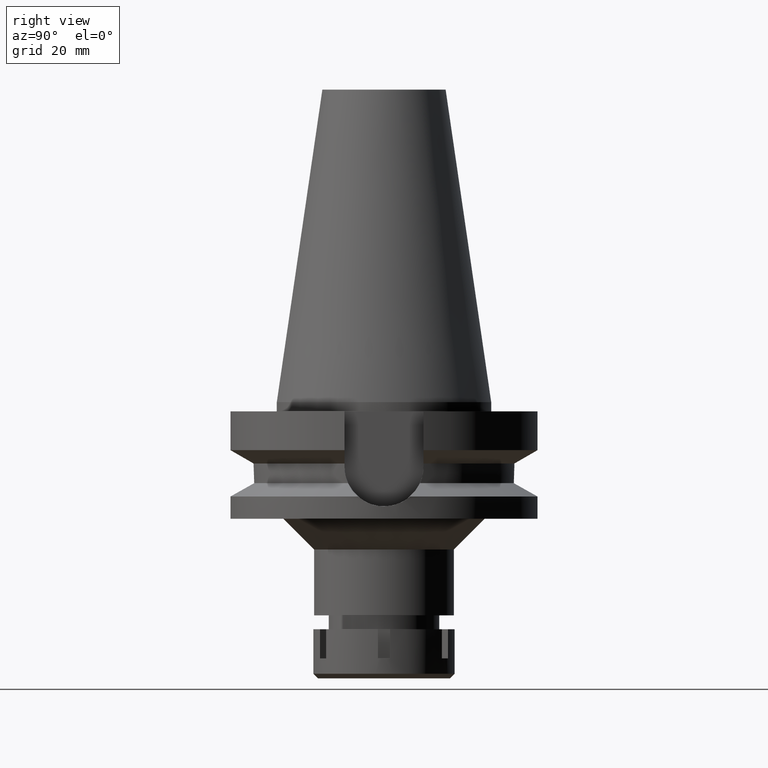
[diagram: clean part render]
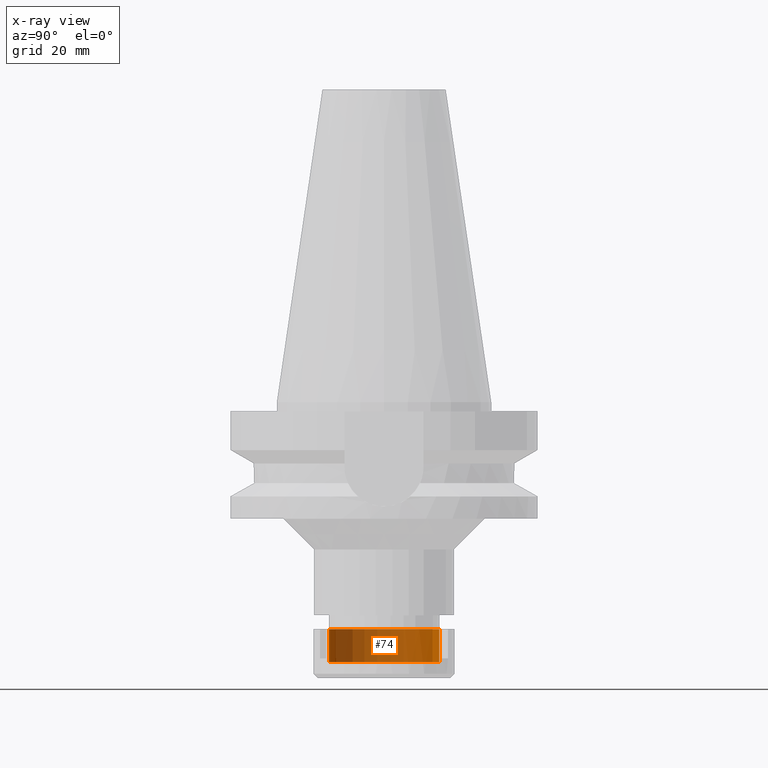
[diagram: x-ray — body ghosted, one internal face saturated and labeled with its STEP entity id]
A machine part, right view, then the same camera in x-ray: the body is ghosted and one INTERNAL B-rep face — a face not visible from any outside direction — is saturated and labeled: STEP entity #74.
In plain terms, the highlighted cylindrical surface (partial cylindrical patch) has radius 18 mm, axis along (0, 0, -1).
Its self-contained STEP definition (entity closure, byte-faithful):
#4 = VERTEX_POINT ( 'NONE', #1217 ) ;
#74 = ADVANCED_FACE ( 'NONE', ( #3523 ), #2722, .F. ) ;
#142 = CARTESIAN_POINT ( 'NONE',  ( 0.0000000000000000000, 0.0000000000000000000, -10.80000000000000071 ) ) ;
#191 = CARTESIAN_POINT ( 'NONE',  ( 0.0000000000000000000, 0.0000000000000000000, 0.0000000000000000000 ) ) ;
#196 = ORIENTED_EDGE ( 'NONE', *, *, #3335, .T. ) ;
#447 = DIRECTION ( 'NONE',  ( 0.0000000000000000000, 0.0000000000000000000, 1.000000000000000000 ) ) ;
#518 = DIRECTION ( 'NONE',  ( 0.0000000000000000000, 0.0000000000000000000, 1.000000000000000000 ) ) ;
#740 = CARTESIAN_POINT ( 'NONE',  ( 0.0000000000000000000, 18.00000000000000000, -10.80000000000000071 ) ) ;
#966 = ORIENTED_EDGE ( 'NONE', *, *, #3524, .T. ) ;
#1010 = CARTESIAN_POINT ( 'NONE',  ( 0.0000000000000000000, -18.00000000000000000, -10.80000000000000071 ) ) ;
#1031 = CARTESIAN_POINT ( 'NONE',  ( 0.0000000000000000000, 0.0000000000000000000, 0.0000000000000000000 ) ) ;
#1069 = LINE ( 'NONE', #740, #2950 ) ;
#1128 = VECTOR ( 'NONE', #1843, 1000.000000000000000 ) ;
#1167 = EDGE_LOOP ( 'NONE', ( #966, #2578, #196, #2581 ) ) ;
#1217 = CARTESIAN_POINT ( 'NONE',  ( 0.0000000000000000000, 18.00000000000000000, -10.80000000000000071 ) ) ;
#1265 = CARTESIAN_POINT ( 'NONE',  ( 0.0000000000000000000, -18.00000000000000000, 0.0000000000000000000 ) ) ;
#1280 = LINE ( 'NONE', #1010, #1128 ) ;
#1321 = DIRECTION ( 'NONE',  ( 0.0000000000000000000, -1.000000000000000000, 0.0000000000000000000 ) ) ;
#1537 = CARTESIAN_POINT ( 'NONE',  ( 0.0000000000000000000, -18.00000000000000000, -10.80000000000000071 ) ) ;
#1595 = EDGE_CURVE ( 'NONE', #4, #3581, #1069, .T. ) ;
#1669 = VERTEX_POINT ( 'NONE', #1265 ) ;
#1766 = DIRECTION ( 'NONE',  ( 0.0000000000000000000, -1.000000000000000000, 0.0000000000000000000 ) ) ;
#1843 = DIRECTION ( 'NONE',  ( 0.0000000000000000000, 0.0000000000000000000, 1.000000000000000000 ) ) ;
#1931 = AXIS2_PLACEMENT_3D ( 'NONE', #1031, #447, #3323 ) ;
#2004 = VERTEX_POINT ( 'NONE', #1537 ) ;
#2143 = EDGE_CURVE ( 'NONE', #2004, #1669, #1280, .T. ) ;
#2379 = DIRECTION ( 'NONE',  ( 0.0000000000000000000, 0.0000000000000000000, -1.000000000000000000 ) ) ;
#2578 = ORIENTED_EDGE ( 'NONE', *, *, #2143, .F. ) ;
#2581 = ORIENTED_EDGE ( 'NONE', *, *, #1595, .T. ) ;
#2642 = DIRECTION ( 'NONE',  ( 0.0000000000000000000, 0.0000000000000000000, -1.000000000000000000 ) ) ;
#2722 = CYLINDRICAL_SURFACE ( 'NONE', #3011, 18.00000000000000000 ) ;
#2950 = VECTOR ( 'NONE', #518, 1000.000000000000000 ) ;
#3011 = AXIS2_PLACEMENT_3D ( 'NONE', #191, #2642, #1321 ) ;
#3226 = AXIS2_PLACEMENT_3D ( 'NONE', #142, #2379, #1766 ) ;
#3301 = CARTESIAN_POINT ( 'NONE',  ( 0.0000000000000000000, 18.00000000000000000, 0.0000000000000000000 ) ) ;
#3323 = DIRECTION ( 'NONE',  ( 0.0000000000000000000, 1.000000000000000000, 0.0000000000000000000 ) ) ;
#3335 = EDGE_CURVE ( 'NONE', #2004, #4, #3576, .T. ) ;
#3346 = CIRCLE ( 'NONE', #1931, 18.00000000000000000 ) ;
#3523 = FACE_OUTER_BOUND ( 'NONE', #1167, .T. ) ;
#3524 = EDGE_CURVE ( 'NONE', #3581, #1669, #3346, .T. ) ;
#3576 = CIRCLE ( 'NONE', #3226, 18.00000000000000000 ) ;
#3581 = VERTEX_POINT ( 'NONE', #3301 ) ;